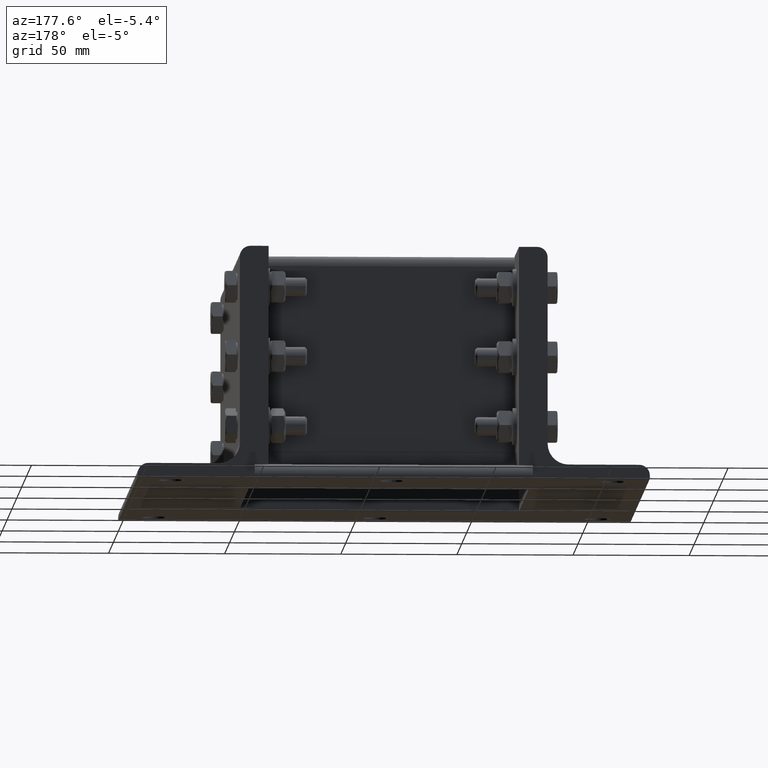
[diagram: clean part render]
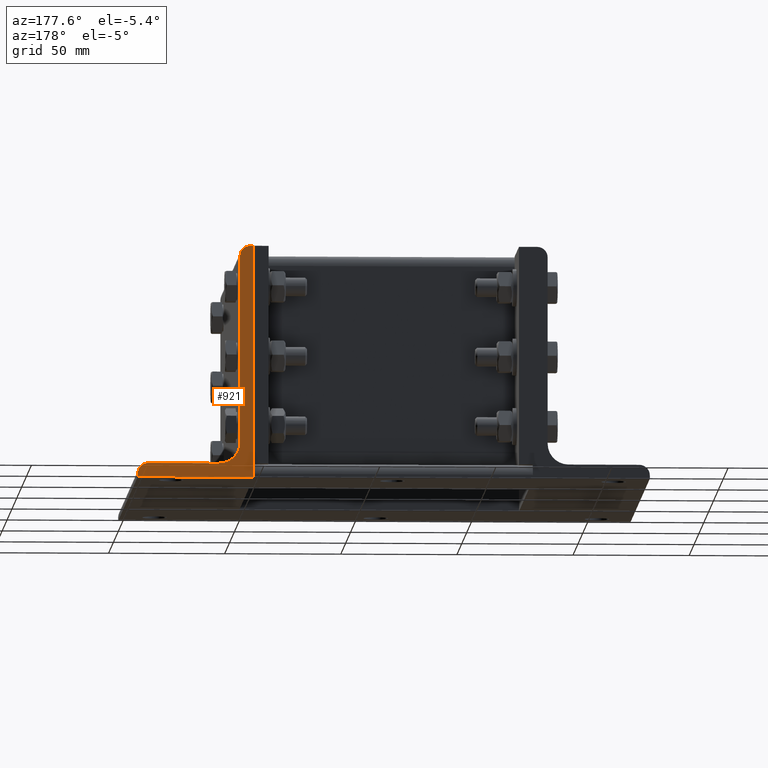
[diagram: same view with one face highlighted and labeled with its STEP entity id]
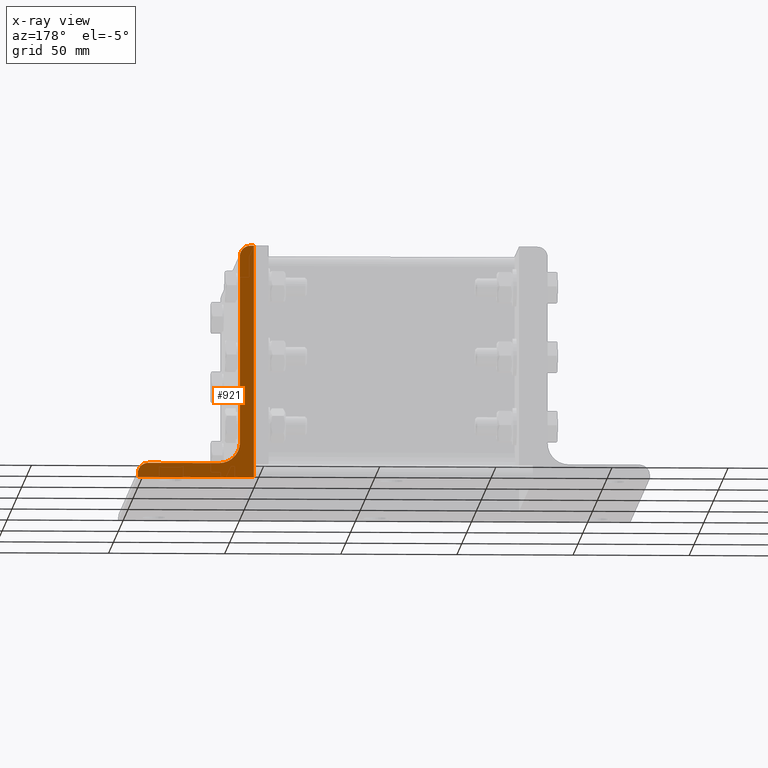
[diagram: x-ray of the same camera — body ghosted, the highlighted face saturated]
A machine part, auxiliary view. The second image highlights one B-rep face of the part: STEP entity #921.
The next image is the same camera in x-ray: the body ghosted, the highlighted face saturated — about 0% of this face is hidden behind the body in this view.
In plain terms, the highlighted planar face has unit normal (0, 1, -0).
Its self-contained STEP definition (entity closure, byte-faithful):
#257=CARTESIAN_POINT('',(15.0,201.0,6.000000000000001));
#258=VERTEX_POINT('',#257);
#265=CARTESIAN_POINT('',(5.999999999999998,201.0,15.000000000000002));
#266=VERTEX_POINT('',#265);
#267=CARTESIAN_POINT('',(15.0,201.0,15.0));
#268=DIRECTION('',(0.0,1.0,0.0));
#269=DIRECTION('',(-0.707106781186548,0.0,-0.707106781186547));
#270=AXIS2_PLACEMENT_3D('',#267,#268,#269);
#271=CIRCLE('',#270,9.0);
#272=EDGE_CURVE('',#258,#266,#271,.T.);
#297=CARTESIAN_POINT('',(45.499999999999986,201.0,5.999999999999991));
#298=VERTEX_POINT('',#297);
#305=CARTESIAN_POINT('',(15.0,201.0,6.0));
#306=DIRECTION('',(1.0,0.0,0.0));
#307=VECTOR('',#306,30.499999999999993);
#308=LINE('',#305,#307);
#309=EDGE_CURVE('',#258,#298,#308,.T.);
#325=CARTESIAN_POINT('',(49.999999999999993,201.0,1.499999999999991));
#326=VERTEX_POINT('',#325);
#327=CARTESIAN_POINT('',(45.499999999999986,201.0,1.499999999999991));
#328=DIRECTION('',(0.0,-1.0,0.0));
#329=DIRECTION('',(0.707106781186547,0.0,0.707106781186548));
#330=AXIS2_PLACEMENT_3D('',#327,#328,#329);
#331=CIRCLE('',#330,4.5);
#332=EDGE_CURVE('',#326,#298,#331,.T.);
#367=CARTESIAN_POINT('',(49.999999999999993,201.0,-1.776357E-014));
#368=VERTEX_POINT('',#367);
#375=CARTESIAN_POINT('',(49.999999999999993,201.0,1.499999999999991));
#376=DIRECTION('',(0.0,0.0,-1.0));
#377=VECTOR('',#376,1.5);
#378=LINE('',#375,#377);
#379=EDGE_CURVE('',#326,#368,#378,.T.);
#440=CARTESIAN_POINT('',(6.000000000000022,201.0,95.5));
#441=VERTEX_POINT('',#440);
#442=CARTESIAN_POINT('',(1.500000000000022,201.0,100.0));
#443=VERTEX_POINT('',#442);
#444=CARTESIAN_POINT('',(1.500000000000022,201.0,95.5));
#445=DIRECTION('',(0.0,-1.0,0.0));
#446=DIRECTION('',(0.707106781186548,0.0,0.707106781186547));
#447=AXIS2_PLACEMENT_3D('',#444,#445,#446);
#448=CIRCLE('',#447,4.5);
#449=EDGE_CURVE('',#441,#443,#448,.T.);
#473=CARTESIAN_POINT('',(1.221245E-014,201.0,100.0));
#474=VERTEX_POINT('',#473);
#475=CARTESIAN_POINT('',(1.243450E-014,201.0,100.0));
#476=DIRECTION('',(1.0,0.0,0.0));
#477=VECTOR('',#476,1.50000000000001);
#478=LINE('',#475,#477);
#479=EDGE_CURVE('',#474,#443,#478,.T.);
#805=CARTESIAN_POINT('',(0.0,201.0,0.0));
#806=VERTEX_POINT('',#805);
#813=CARTESIAN_POINT('',(49.999999999999993,201.0,-9.228729E-015));
#814=DIRECTION('',(-1.0,0.0,0.0));
#815=VECTOR('',#814,49.999999999999993);
#816=LINE('',#813,#815);
#817=EDGE_CURVE('',#368,#806,#816,.T.);
#835=CARTESIAN_POINT('',(6.000000000000022,201.0,95.500000000000014));
#836=DIRECTION('',(0.0,0.0,-1.0));
#837=VECTOR('',#836,80.500000000000014);
#838=LINE('',#835,#837);
#839=EDGE_CURVE('',#441,#266,#838,.T.);
#871=CARTESIAN_POINT('',(-1.577722E-030,201.0,0.0));
#872=DIRECTION('',(0.0,0.0,1.0));
#873=VECTOR('',#872,100.0);
#874=LINE('',#871,#873);
#875=EDGE_CURVE('',#806,#474,#874,.T.);
#905=CARTESIAN_POINT('',(11.213333333333331,201.0,36.213333333333331));
#906=DIRECTION('',(0.0,1.0,0.0));
#907=DIRECTION('',(0.0,0.0,1.0));
#908=AXIS2_PLACEMENT_3D('',#905,#906,#907);
#909=PLANE('',#908);
#910=ORIENTED_EDGE('',*,*,#332,.F.);
#911=ORIENTED_EDGE('',*,*,#379,.T.);
#912=ORIENTED_EDGE('',*,*,#817,.T.);
#913=ORIENTED_EDGE('',*,*,#875,.T.);
#914=ORIENTED_EDGE('',*,*,#479,.T.);
#915=ORIENTED_EDGE('',*,*,#449,.F.);
#916=ORIENTED_EDGE('',*,*,#839,.T.);
#917=ORIENTED_EDGE('',*,*,#272,.F.);
#918=ORIENTED_EDGE('',*,*,#309,.T.);
#919=EDGE_LOOP('',(#910,#911,#912,#913,#914,#915,#916,#917,#918));
#920=FACE_OUTER_BOUND('',#919,.T.);
#921=ADVANCED_FACE('',(#920),#909,.T.);